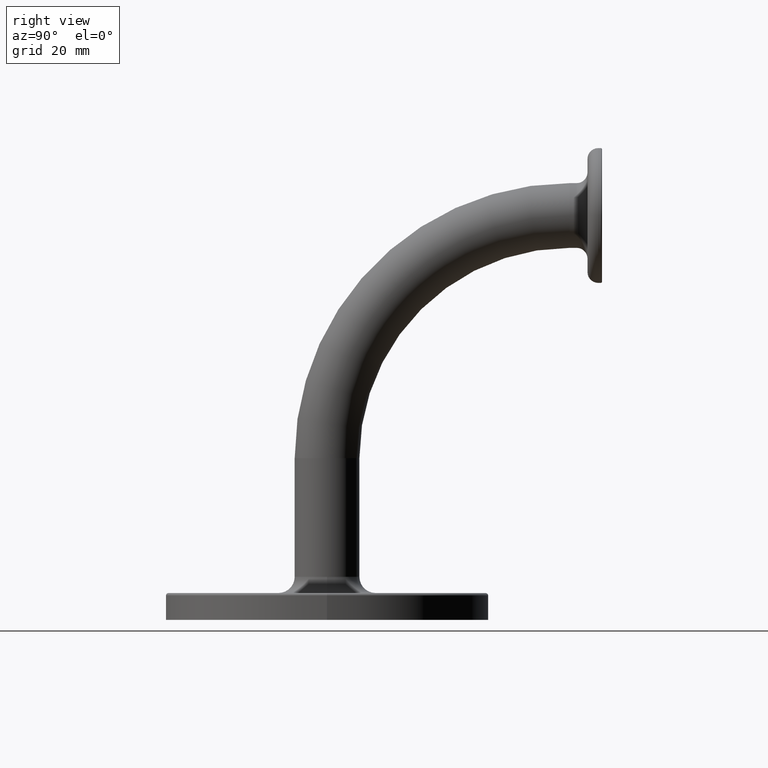
[diagram: clean part render]
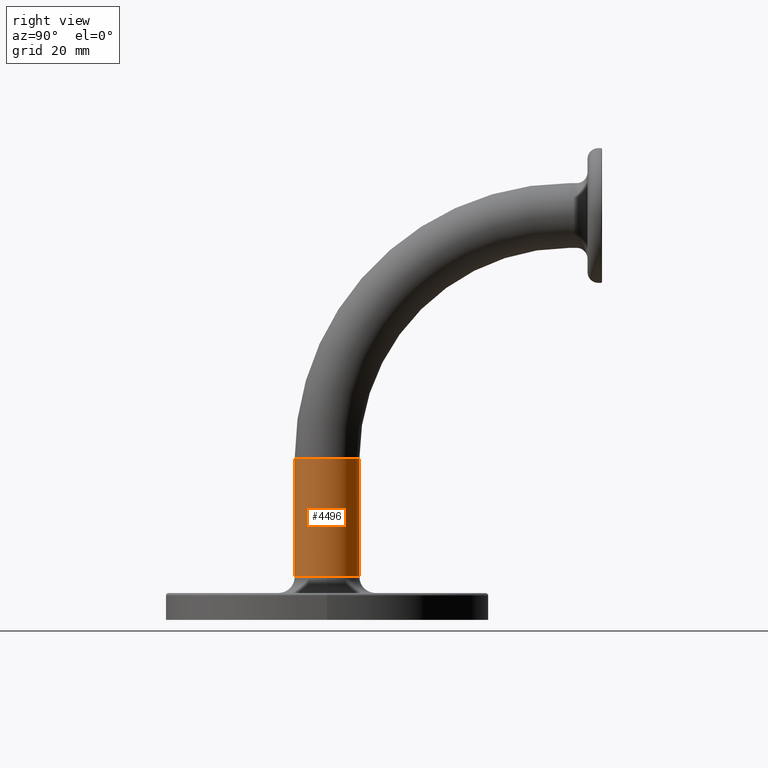
[diagram: same view with one face highlighted and labeled with its STEP entity id]
A machine part, right view. The second image highlights one B-rep face of the part: STEP entity #4496.
In plain terms, the highlighted cylindrical surface (edge-blend (fillet) strip) has radius 6 mm, axis along (-0, 0, -1).
Its self-contained STEP definition (entity closure, byte-faithful):
#865 = DIRECTION ( 'NONE',  ( -1.000000000000000000, 0.000000000000000000, 0.000000000000000000 ) ) ;
#1173 = CARTESIAN_POINT ( 'NONE',  ( 0.000000000000000000, 5.999999999999993783, 29.99999999999999289 ) ) ;
#1179 = CARTESIAN_POINT ( 'NONE',  ( 7.347880794884120722E-16, -6.000000000000002665, 8.000000000000000000 ) ) ;
#1938 = CARTESIAN_POINT ( 'NONE',  ( 0.000000000000000000, -1.850371707708581349E-15, 8.000000000000000000 ) ) ;
#2500 = VECTOR ( 'NONE', #12583, 1000.000000000000000 ) ;
#2581 = EDGE_CURVE ( 'NONE', #8187, #6678, #13777, .T. ) ;
#2600 = AXIS2_PLACEMENT_3D ( 'NONE', #8357, #15741, #9488 ) ;
#2656 = CARTESIAN_POINT ( 'NONE',  ( 7.347880794884120722E-16, -6.000000000000007994, 29.99999999999999289 ) ) ;
#3071 = DIRECTION ( 'NONE',  ( 0.000000000000000000, 0.000000000000000000, 1.000000000000000000 ) ) ;
#3111 = VERTEX_POINT ( 'NONE', #1173 ) ;
#3206 = CARTESIAN_POINT ( 'NONE',  ( 0.000000000000000000, 5.999999999999999112, 8.000000000000000000 ) ) ;
#3421 = DIRECTION ( 'NONE',  ( 0.000000000000000000, 1.000000000000000000, 0.000000000000000000 ) ) ;
#3920 = LINE ( 'NONE', #5360, #11854 ) ;
#4496 = ADVANCED_FACE ( 'NONE', ( #8721 ), #8351, .T. ) ;
#4658 = CARTESIAN_POINT ( 'NONE',  ( 0.000000000000000000, -6.938893903907179468E-15, 29.99999999999999289 ) ) ;
#4990 = ORIENTED_EDGE ( 'NONE', *, *, #15539, .T. ) ;
#5360 = CARTESIAN_POINT ( 'NONE',  ( 0.000000000000000000, 5.999999999999993783, 29.99999999999999289 ) ) ;
#5832 = AXIS2_PLACEMENT_3D ( 'NONE', #4658, #7147, #3421 ) ;
#6678 = VERTEX_POINT ( 'NONE', #3206 ) ;
#6920 = DIRECTION ( 'NONE',  ( 0.000000000000000000, 0.000000000000000000, -1.000000000000000000 ) ) ;
#7142 = VERTEX_POINT ( 'NONE', #15702 ) ;
#7147 = DIRECTION ( 'NONE',  ( -0.000000000000000000, 2.312964634635727180E-16, -1.000000000000000000 ) ) ;
#7236 = AXIS2_PLACEMENT_3D ( 'NONE', #1938, #3071, #15493 ) ;
#7801 = CIRCLE ( 'NONE', #7236, 6.000000000000000888 ) ;
#8027 = CIRCLE ( 'NONE', #12473, 6.000000000000000888 ) ;
#8187 = VERTEX_POINT ( 'NONE', #15371 ) ;
#8351 = CYLINDRICAL_SURFACE ( 'NONE', #5832, 6.000000000000000888 ) ;
#8357 = CARTESIAN_POINT ( 'NONE',  ( 0.000000000000000000, -1.850371707708581349E-15, 8.000000000000000000 ) ) ;
#8721 = FACE_OUTER_BOUND ( 'NONE', #14968, .T. ) ;
#9488 = DIRECTION ( 'NONE',  ( 1.000000000000000000, 0.000000000000000000, 0.000000000000000000 ) ) ;
#9984 = ORIENTED_EDGE ( 'NONE', *, *, #12580, .T. ) ;
#10872 = EDGE_CURVE ( 'NONE', #3111, #7142, #8027, .T. ) ;
#10980 = ORIENTED_EDGE ( 'NONE', *, *, #10872, .T. ) ;
#11658 = ORIENTED_EDGE ( 'NONE', *, *, #13278, .F. ) ;
#11854 = VECTOR ( 'NONE', #14044, 1000.000000000000000 ) ;
#12473 = AXIS2_PLACEMENT_3D ( 'NONE', #13188, #6920, #865 ) ;
#12580 = EDGE_CURVE ( 'NONE', #14891, #8187, #7801, .T. ) ;
#12583 = DIRECTION ( 'NONE',  ( -0.000000000000000000, 2.312964634635727180E-16, -1.000000000000000000 ) ) ;
#13188 = CARTESIAN_POINT ( 'NONE',  ( 0.000000000000000000, -6.938893903907179468E-15, 29.99999999999999289 ) ) ;
#13278 = EDGE_CURVE ( 'NONE', #3111, #6678, #3920, .T. ) ;
#13541 = ORIENTED_EDGE ( 'NONE', *, *, #2581, .T. ) ;
#13777 = CIRCLE ( 'NONE', #2600, 6.000000000000000888 ) ;
#14044 = DIRECTION ( 'NONE',  ( -0.000000000000000000, 2.312964634635727180E-16, -1.000000000000000000 ) ) ;
#14500 = LINE ( 'NONE', #2656, #2500 ) ;
#14891 = VERTEX_POINT ( 'NONE', #1179 ) ;
#14968 = EDGE_LOOP ( 'NONE', ( #10980, #4990, #9984, #13541, #11658 ) ) ;
#15371 = CARTESIAN_POINT ( 'NONE',  ( 6.000000000000000888, -1.850371707708581349E-15, 8.000000000000000000 ) ) ;
#15493 = DIRECTION ( 'NONE',  ( 1.000000000000000000, 0.000000000000000000, 0.000000000000000000 ) ) ;
#15539 = EDGE_CURVE ( 'NONE', #7142, #14891, #14500, .T. ) ;
#15702 = CARTESIAN_POINT ( 'NONE',  ( 7.347880794884123680E-16, -6.000000000000007994, 29.99999999999999289 ) ) ;
#15741 = DIRECTION ( 'NONE',  ( 0.000000000000000000, 0.000000000000000000, 1.000000000000000000 ) ) ;